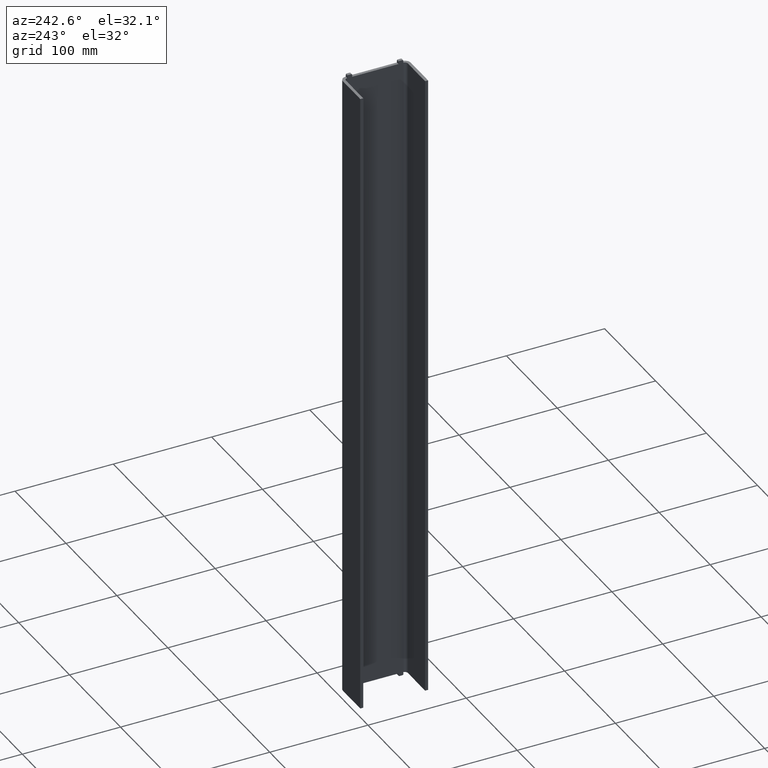
[diagram: clean part render]
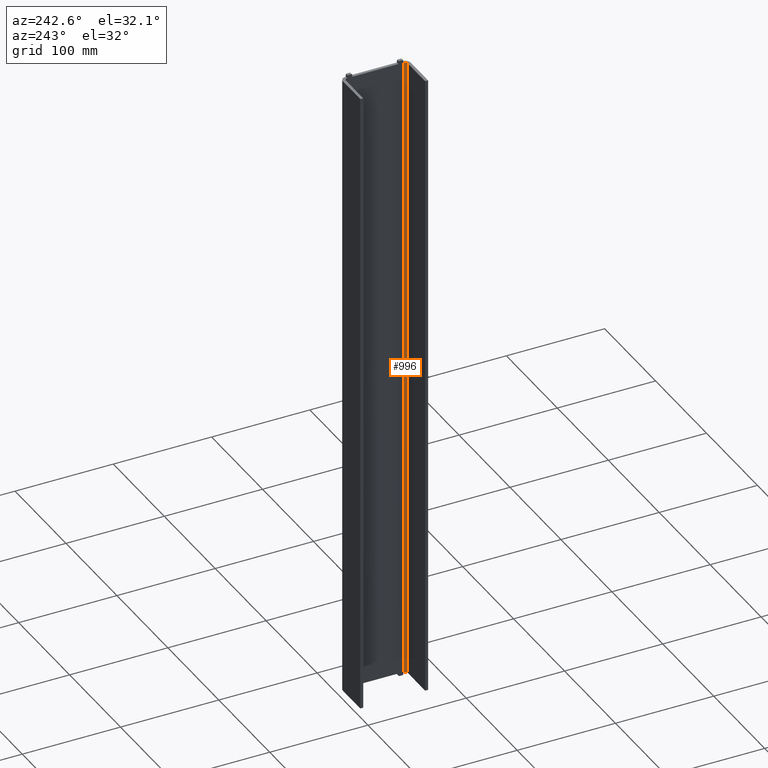
[diagram: same view with one face highlighted and labeled with its STEP entity id]
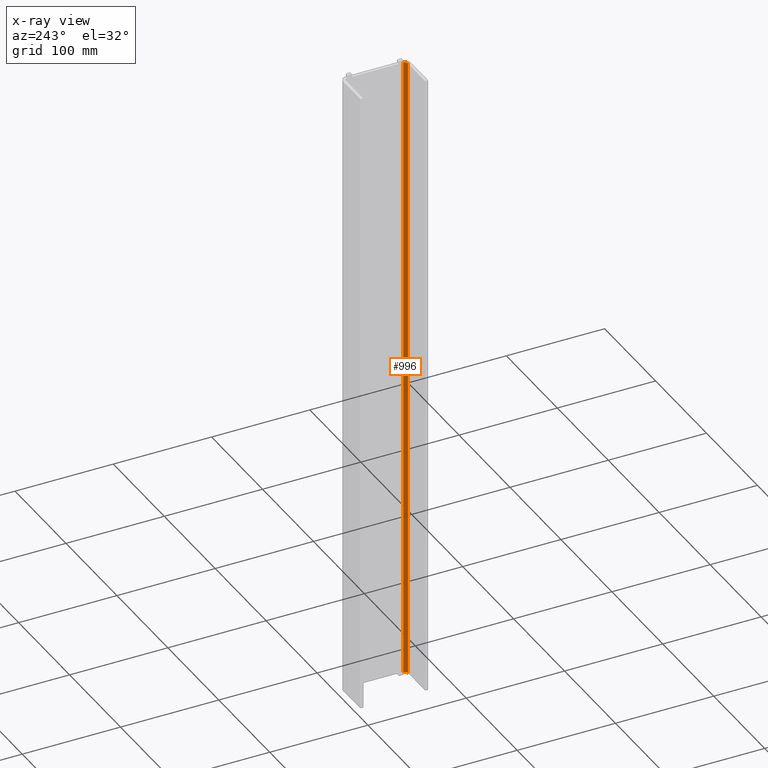
[diagram: x-ray of the same camera — body ghosted, the highlighted face saturated]
A machine part, auxiliary view. The second image highlights one B-rep face of the part: STEP entity #996.
The next image is the same camera in x-ray: the body ghosted, the highlighted face saturated — about 0% of this face is hidden behind the body in this view.
In plain terms, the highlighted cylindrical surface (edge-blend (fillet) strip) has radius 3 mm, axis along (0, 0, -1).
Its self-contained STEP definition (entity closure, byte-faithful):
#16 = ORIENTED_EDGE ( 'NONE', *, *, #1166, .T. ) ;
#36 = CARTESIAN_POINT ( 'NONE',  ( 346.9999999999996589, -1160.305262667904117, -624.9999999999997726 ) ) ;
#52 = CARTESIAN_POINT ( 'NONE',  ( 343.9999999999996589, -1160.305262667904117, -624.9999999999997726 ) ) ;
#100 = CARTESIAN_POINT ( 'NONE',  ( 346.9999999999996589, -1160.305262667904117, 25.00000000000045119 ) ) ;
#147 = VERTEX_POINT ( 'NONE', #36 ) ;
#151 = EDGE_CURVE ( 'NONE', #147, #472, #953, .T. ) ;
#153 = VERTEX_POINT ( 'NONE', #1145 ) ;
#174 = EDGE_LOOP ( 'NONE', ( #538, #1059, #16, #320 ) ) ;
#232 = CIRCLE ( 'NONE', #985, 3.000000000000002665 ) ;
#239 = DIRECTION ( 'NONE',  ( 0.000000000000000000, 0.000000000000000000, -1.000000000000000000 ) ) ;
#320 = ORIENTED_EDGE ( 'NONE', *, *, #1296, .F. ) ;
#376 = AXIS2_PLACEMENT_3D ( 'NONE', #1107, #1133, #733 ) ;
#404 = FACE_OUTER_BOUND ( 'NONE', #174, .T. ) ;
#411 = DIRECTION ( 'NONE',  ( 1.000000000000000000, 0.000000000000000000, 0.000000000000000000 ) ) ;
#461 = DIRECTION ( 'NONE',  ( 0.000000000000000000, 0.000000000000000000, -1.000000000000000000 ) ) ;
#472 = VERTEX_POINT ( 'NONE', #100 ) ;
#509 = CYLINDRICAL_SURFACE ( 'NONE', #880, 3.000000000000002665 ) ;
#538 = ORIENTED_EDGE ( 'NONE', *, *, #825, .T. ) ;
#624 = DIRECTION ( 'NONE',  ( 0.000000000000000000, 0.000000000000000000, 1.000000000000000000 ) ) ;
#637 = CARTESIAN_POINT ( 'NONE',  ( 343.9999999999996589, -1160.305262667904117, 104.7558775263622834 ) ) ;
#641 = VERTEX_POINT ( 'NONE', #1291 ) ;
#661 = DIRECTION ( 'NONE',  ( 1.000000000000000000, 0.000000000000000000, 0.000000000000000000 ) ) ;
#733 = DIRECTION ( 'NONE',  ( 1.000000000000000000, 0.000000000000000000, 0.000000000000000000 ) ) ;
#777 = CARTESIAN_POINT ( 'NONE',  ( 343.9999999999996589, -1163.305262667904117, 104.7558775263622834 ) ) ;
#824 = CARTESIAN_POINT ( 'NONE',  ( 346.9999999999996589, -1160.305262667904117, 104.7558775263622834 ) ) ;
#825 = EDGE_CURVE ( 'NONE', #153, #472, #831, .T. ) ;
#831 = CIRCLE ( 'NONE', #376, 3.000000000000002665 ) ;
#834 = VECTOR ( 'NONE', #1286, 1000.000000000000000 ) ;
#880 = AXIS2_PLACEMENT_3D ( 'NONE', #637, #239, #411 ) ;
#953 = LINE ( 'NONE', #824, #1224 ) ;
#985 = AXIS2_PLACEMENT_3D ( 'NONE', #52, #461, #661 ) ;
#996 = ADVANCED_FACE ( 'NONE', ( #404 ), #509, .F. ) ;
#1059 = ORIENTED_EDGE ( 'NONE', *, *, #151, .F. ) ;
#1107 = CARTESIAN_POINT ( 'NONE',  ( 343.9999999999996589, -1160.305262667904117, 25.00000000000045119 ) ) ;
#1133 = DIRECTION ( 'NONE',  ( -0.000000000000000000, -0.000000000000000000, 1.000000000000000000 ) ) ;
#1145 = CARTESIAN_POINT ( 'NONE',  ( 343.9999999999996589, -1163.305262667904117, 25.00000000000045119 ) ) ;
#1152 = LINE ( 'NONE', #777, #834 ) ;
#1166 = EDGE_CURVE ( 'NONE', #147, #641, #232, .T. ) ;
#1224 = VECTOR ( 'NONE', #624, 1000.000000000000000 ) ;
#1286 = DIRECTION ( 'NONE',  ( -0.000000000000000000, -0.000000000000000000, -1.000000000000000000 ) ) ;
#1291 = CARTESIAN_POINT ( 'NONE',  ( 343.9999999999996589, -1163.305262667903889, -624.9999999999997726 ) ) ;
#1296 = EDGE_CURVE ( 'NONE', #153, #641, #1152, .T. ) ;